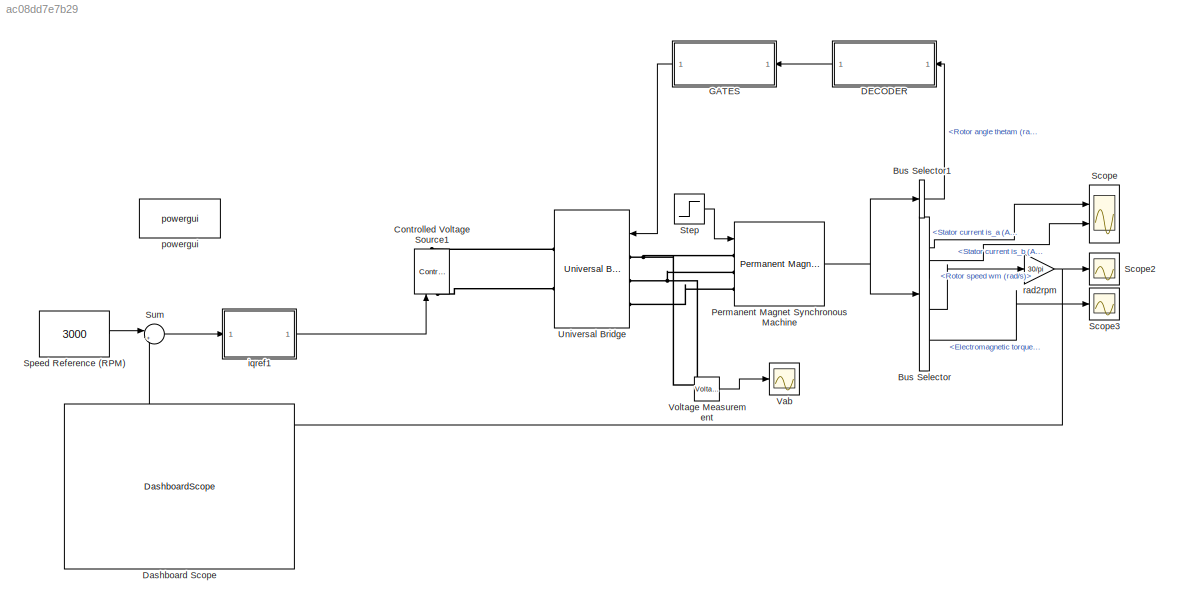
MODEL slx_ac08dd7e7b29
KIND model
CONFIG AbsTol = auto
CONFIG EnableMultiTasking = off
CONFIG FixedStep = auto
CONFIG MaxStep = auto
CONFIG MinStep = auto
CONFIG RelTol = 1e-3
CONFIG SampleTimeConstraint = Unconstrained
CONFIG SolverName = VariableStepAuto
CONFIG StartTime = 0.0
CONFIG StopTime = 10.0
BLOCK [BusSelector] Bus Selector
  OutputSignals = Stator current is_a (A),Stator current is_b (A),Rotor speed wm (rad/s),Electromagnetic torque Te (N*m)
  Ports = [1, 4]
BLOCK [BusSelector] Bus Selector1
  OutputSignals = Rotor angle thetam (rad)
  Ports = [1, 1]
BLOCK [Reference] Controlled Voltage Source1  REF=powerlib/Electrical
Sources/Controlled Voltage Source
  NameLocation = right
  Ports = [1, 0, 0, 0, 0, 1, 1]
  SourceBlock = powerlib/Electrical\nSources/Controlled Voltage Source
  SourceProductBaseCode = PS
  SourceType = Controlled Voltage Source
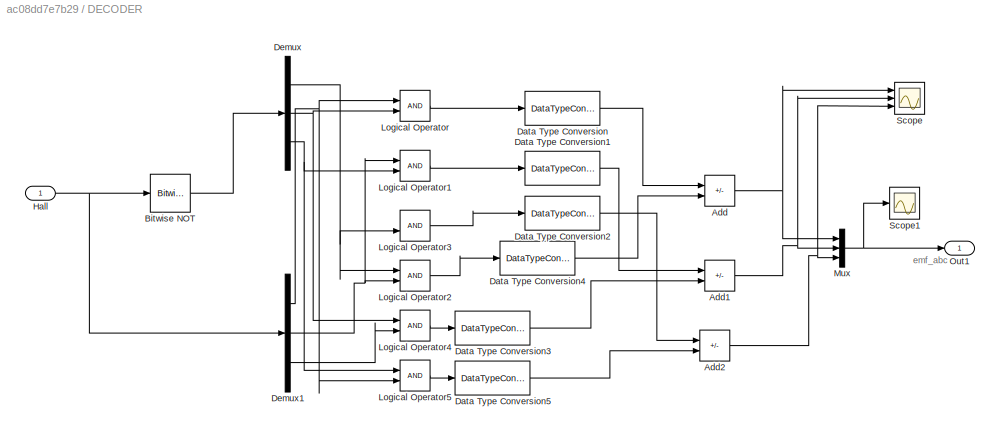
BLOCK [SubSystem] DECODER
  Ports = [1, 1]
  RequestExecContextInheritance = off
BLOCK [Sum] DECODER/Add
  IconShape = rectangular
  Inputs = +-
  Ports = [2, 1]
BLOCK [Sum] DECODER/Add1
  IconShape = rectangular
  Inputs = +-
  Ports = [2, 1]
BLOCK [Sum] DECODER/Add2
  IconShape = rectangular
  Inputs = +-
  Ports = [2, 1]
BLOCK [Reference] DECODER/Bitwise NOT  REF=simulink/Logic and Bit
Operations/Bitwise
Operator
  Ports = [1, 1]
  SourceBlock = simulink/Logic and Bit\nOperations/Bitwise\nOperator
  SourceProductBaseCode = SL
  SourceType = Bitwise Operator
BLOCK [DataTypeConversion] DECODER/Data Type Conversion
  RndMeth = Floor
  SaturateOnIntegerOverflow = off
BLOCK [DataTypeConversion] DECODER/Data Type Conversion1
  RndMeth = Floor
  SaturateOnIntegerOverflow = off
BLOCK [DataTypeConversion] DECODER/Data Type Conversion2
  RndMeth = Floor
  SaturateOnIntegerOverflow = off
BLOCK [DataTypeConversion] DECODER/Data Type Conversion3
  RndMeth = Floor
  SaturateOnIntegerOverflow = off
BLOCK [DataTypeConversion] DECODER/Data Type Conversion4
  RndMeth = Floor
  SaturateOnIntegerOverflow = off
BLOCK [DataTypeConversion] DECODER/Data Type Conversion5
  RndMeth = Floor
  SaturateOnIntegerOverflow = off
BLOCK [Demux] DECODER/Demux
  Outputs = 3
  Ports = [1, 3]
BLOCK [Demux] DECODER/Demux1
  Outputs = 3
  Ports = [1, 3]
BLOCK [Inport] DECODER/Hall
BLOCK [Logic] DECODER/Logical Operator
  AllPortsSameDT = off
  OutDataTypeStr = boolean
  Ports = [2, 1]
BLOCK [Logic] DECODER/Logical Operator1
  AllPortsSameDT = off
  OutDataTypeStr = boolean
  Ports = [2, 1]
BLOCK [Logic] DECODER/Logical Operator2
  AllPortsSameDT = off
  OutDataTypeStr = boolean
  Ports = [2, 1]
BLOCK [Logic] DECODER/Logical Operator3
  AllPortsSameDT = off
  OutDataTypeStr = boolean
  Ports = [2, 1]
BLOCK [Logic] DECODER/Logical Operator4
  AllPortsSameDT = off
  OutDataTypeStr = boolean
  Ports = [2, 1]
BLOCK [Logic] DECODER/Logical Operator5
  AllPortsSameDT = off
  OutDataTypeStr = boolean
  Ports = [2, 1]
BLOCK [Mux] DECODER/Mux
  DisplayOption = bar
  Inputs = 3
  Ports = [3, 1]
BLOCK [Outport] DECODER/Out1
BLOCK [Scope] DECODER/Scope
  Floating = off
  NumInputPorts = 3
  Ports = [3]
  ScopeSpecificationString = Simulink.scopes.TimeScopeBlockCfg('CurrentConfiguration', extmgr.ConfigurationSet(extmgr.Configuration('Core','General UI',true),extmgr.Configuration('Core','Source UI',true),extmgr.Configuration('Sources','WiredSimulink',true,'DataLoggingVariableName','ScopeData5'),extmgr.Configuration('Visuals','Time Domain',true),extmgr.Configuration('Tools','Plot Navigation',true),extmgr.Configuration('Tools',...<+58ch>
BLOCK [Scope] DECODER/Scope1
  Floating = off
  NumInputPorts = 1
  Ports = [1]
  ScopeSpecificationString = Simulink.scopes.TimeScopeBlockCfg('CurrentConfiguration', extmgr.ConfigurationSet(extmgr.Configuration('Core','General UI',true),extmgr.Configuration('Core','Source UI',true),extmgr.Configuration('Sources','WiredSimulink',true,'DataLoggingVariableName','ScopeData6'),extmgr.Configuration('Visuals','Time Domain',true),extmgr.Configuration('Tools','Plot Navigation',true),extmgr.Configuration('Tools',...<+40ch>
BLOCK [DashboardScope] Dashboard Scope
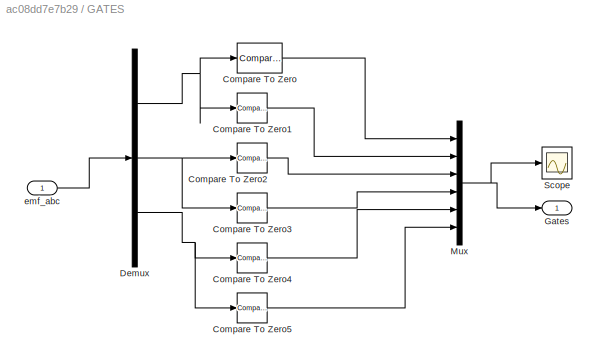
BLOCK [SubSystem] GATES
  Ports = [1, 1]
  RequestExecContextInheritance = off
BLOCK [Reference] GATES/Compare To Zero  REF=simulink/Logic and Bit
Operations/Compare
To Zero
  Ports = [1, 1]
  SourceBlock = simulink/Logic and Bit\nOperations/Compare\nTo Zero
  SourceProductBaseCode = SL
  SourceType = Compare To Zero
BLOCK [Reference] GATES/Compare To Zero1  REF=simulink/Logic and Bit
Operations/Compare
To Zero
  Ports = [1, 1]
  SourceBlock = simulink/Logic and Bit\nOperations/Compare\nTo Zero
  SourceProductBaseCode = SL
  SourceType = Compare To Zero
BLOCK [Reference] GATES/Compare To Zero2  REF=simulink/Logic and Bit
Operations/Compare
To Zero
  Ports = [1, 1]
  SourceBlock = simulink/Logic and Bit\nOperations/Compare\nTo Zero
  SourceProductBaseCode = SL
  SourceType = Compare To Zero
BLOCK [Reference] GATES/Compare To Zero3  REF=simulink/Logic and Bit
Operations/Compare
To Zero
  Ports = [1, 1]
  SourceBlock = simulink/Logic and Bit\nOperations/Compare\nTo Zero
  SourceProductBaseCode = SL
  SourceType = Compare To Zero
BLOCK [Reference] GATES/Compare To Zero4  REF=simulink/Logic and Bit
Operations/Compare
To Zero
  Ports = [1, 1]
  SourceBlock = simulink/Logic and Bit\nOperations/Compare\nTo Zero
  SourceProductBaseCode = SL
  SourceType = Compare To Zero
BLOCK [Reference] GATES/Compare To Zero5  REF=simulink/Logic and Bit
Operations/Compare
To Zero
  Ports = [1, 1]
  SourceBlock = simulink/Logic and Bit\nOperations/Compare\nTo Zero
  SourceProductBaseCode = SL
  SourceType = Compare To Zero
BLOCK [Demux] GATES/Demux
  Outputs = 3
  Ports = [1, 3]
BLOCK [Outport] GATES/Gates
BLOCK [Mux] GATES/Mux
  DisplayOption = bar
  Inputs = 6
  Ports = [6, 1]
BLOCK [Scope] GATES/Scope
  Floating = off
  NumInputPorts = 1
  Ports = [1]
  ScopeSpecificationString = Simulink.scopes.TimeScopeBlockCfg('CurrentConfiguration', extmgr.ConfigurationSet(extmgr.Configuration('Core','General UI',true),extmgr.Configuration('Core','Source UI',true),extmgr.Configuration('Sources','WiredSimulink',true,'DataLoggingVariableName','ScopeData4'),extmgr.Configuration('Visuals','Time Domain',true),extmgr.Configuration('Tools','Plot Navigation',true),extmgr.Configuration('Tools',...<+40ch>
BLOCK [Inport] GATES/emf_abc
BLOCK [Reference] Permanent Magnet Synchronous Machine  REF=powerlib/Machines/Permanent Magnet
Synchronous Machine
  Ports = [1, 1, 0, 0, 0, 3]
  SourceBlock = powerlib/Machines/Permanent Magnet\nSynchronous Machine
  SourceProductBaseCode = PS
  SourceType = Permanent Magnet Synchronous Machine
BLOCK [Scope] Scope
  Floating = off
  NumInputPorts = 2
  Ports = [2]
  ScopeSpecificationString = Simulink.scopes.TimeScopeBlockCfg('CurrentConfiguration', extmgr.ConfigurationSet(extmgr.Configuration('Core','General UI',true),extmgr.Configuration('Core','Source UI',true),extmgr.Configuration('Sources','WiredSimulink',true),extmgr.Configuration('Visuals','Time Domain',true),extmgr.Configuration('Tools','Plot Navigation',true),extmgr.Configuration('Tools','Measurements',true)),'Version','2020b'...<+1ch>
BLOCK [Scope] Scope2
  Floating = off
  NumInputPorts = 1
  Ports = [1]
  ScopeSpecificationString = Simulink.scopes.TimeScopeBlockCfg('CurrentConfiguration', extmgr.ConfigurationSet(extmgr.Configuration('Core','General UI',true),extmgr.Configuration('Core','Source UI',true),extmgr.Configuration('Sources','WiredSimulink',true,'DataLoggingVariableName','ScopeData2'),extmgr.Configuration('Visuals','Time Domain',true),extmgr.Configuration('Tools','Plot Navigation',true),extmgr.Configuration('Tools',...<+40ch>
BLOCK [Scope] Scope3
  Floating = off
  NumInputPorts = 1
  Ports = [1]
  ScopeSpecificationString = Simulink.scopes.TimeScopeBlockCfg('CurrentConfiguration', extmgr.ConfigurationSet(extmgr.Configuration('Core','General UI',true),extmgr.Configuration('Core','Source UI',true),extmgr.Configuration('Sources','WiredSimulink',true,'DataLoggingVariableName','ScopeData3'),extmgr.Configuration('Visuals','Time Domain',true),extmgr.Configuration('Tools','Plot Navigation',true),extmgr.Configuration('Tools',...<+40ch>
BLOCK [Constant] Speed Reference (RPM)
  Value = 3000
BLOCK [Step] Step
  SampleTime = 0
BLOCK [Sum] Sum
  Inputs = |+-
  Ports = [2, 1]
BLOCK [Reference] Universal Bridge  REF=powerlib/Power
Electronics/Universal Bridge
  NameLocation = top
  Ports = [1, 0, 0, 0, 0, 3, 2]
  SourceBlock = powerlib/Power\nElectronics/Universal Bridge
  SourceProductBaseCode = PS
  SourceType = Universal Bridge
BLOCK [Scope] Vab
  Floating = off
  NumInputPorts = 1
  Ports = [1]
  ScopeSpecificationString = Simulink.scopes.TimeScopeBlockCfg('CurrentConfiguration', extmgr.ConfigurationSet(extmgr.Configuration('Core','General UI',true),extmgr.Configuration('Core','Source UI',true),extmgr.Configuration('Sources','WiredSimulink',true,'DataLoggingVariableName','ScopeData1'),extmgr.Configuration('Visuals','Time Domain',true),extmgr.Configuration('Tools','Plot Navigation',true),extmgr.Configuration('Tools',...<+40ch>
BLOCK [Reference] Voltage Measurement  REF=powerlib/Measurements/Voltage Measurement
  Ports = [0, 1, 0, 0, 0, 2]
  SourceBlock = powerlib/Measurements/Voltage Measurement
  SourceProductBaseCode = PS
  SourceType = Voltage Measurement
  UserDataPersistent = on
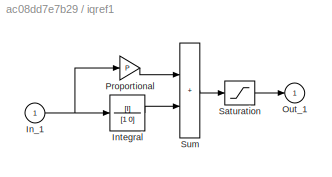
BLOCK [SubSystem] iqref1
  Ports = [1, 1]
  RequestExecContextInheritance = off
BLOCK [Inport] iqref1/In_1
BLOCK [TransferFcn] iqref1/Integral
  Denominator = [1 0]
  Numerator = [I]
BLOCK [Outport] iqref1/Out_1
  InitialOutput = 0
  VectorParamsAs1DForOutWhenUnconnected = off
BLOCK [Gain] iqref1/Proportional
  Gain = P
  NameLocation = top
  OutDataTypeStr = Inherit: Same as input
  ParamDataTypeStr = Inherit: Same as input
  SaturateOnIntegerOverflow = on
BLOCK [Saturate] iqref1/Saturation
  LowerLimit = min
  UpperLimit = max
BLOCK [Sum] iqref1/Sum
  IconShape = rectangular
  InputSameDT = on
  OutDataTypeStr = Inherit: Same as first input
  Ports = [2, 1]
  SaturateOnIntegerOverflow = on
BLOCK [Reference] powergui  REF=powerlib/powergui
  Ports = []
  Priority = 1
  SourceBlock = powerlib/powergui
  SourceProductBaseCode = PS
  SourceType = PSB option menu block
BLOCK [Gain] rad2rpm
  Gain = 30/pi
ANNOTATION DECODER: emf_abc
LINE Bus Selector1:1 -> DECODER:1
LINE Bus Selector:1 -> Scope:1
LINE Bus Selector:2 -> Scope:2
LINE Bus Selector:3 -> rad2rpm:1
LINE Bus Selector:4 -> Scope3:1
NET DECODER/Add1:1 -> DECODER/Mux:2, DECODER/Scope:2
NET DECODER/Add2:1 -> DECODER/Mux:3, DECODER/Scope:3
NET DECODER/Add:1 -> DECODER/Mux:1, DECODER/Scope:1
LINE DECODER/Bitwise NOT:1 -> DECODER/Demux:1
LINE DECODER/Data Type Conversion1:1 -> DECODER/Add1:1
LINE DECODER/Data Type Conversion2:1 -> DECODER/Add2:1
LINE DECODER/Data Type Conversion3:1 -> DECODER/Add1:2
LINE DECODER/Data Type Conversion4:1 -> DECODER/Add:2
LINE DECODER/Data Type Conversion5:1 -> DECODER/Add2:2
LINE DECODER/Data Type Conversion:1 -> DECODER/Add:1
NET DECODER/Demux1:1 -> DECODER/Logical Operator5:2, DECODER/Logical Operator:1
NET DECODER/Demux1:2 -> DECODER/Logical Operator1:1, DECODER/Logical Operator2:2
LINE DECODER/Demux1:3 -> DECODER/Logical Operator4:2
NET DECODER/Demux:1 -> DECODER/Logical Operator2:1, DECODER/Logical Operator3:2
NET DECODER/Demux:2 -> DECODER/Logical Operator4:1, DECODER/Logical Operator:2
NET DECODER/Demux:3 -> DECODER/Logical Operator1:2, DECODER/Logical Operator5:1
NET DECODER/Hall:1 -> DECODER/Bitwise NOT:1, DECODER/Demux1:1
LINE DECODER/Logical Operator1:1 -> DECODER/Data Type Conversion1:1
LINE DECODER/Logical Operator2:1 -> DECODER/Data Type Conversion4:1
LINE DECODER/Logical Operator3:1 -> DECODER/Data Type Conversion2:1
LINE DECODER/Logical Operator4:1 -> DECODER/Data Type Conversion3:1
LINE DECODER/Logical Operator5:1 -> DECODER/Data Type Conversion5:1
LINE DECODER/Logical Operator:1 -> DECODER/Data Type Conversion:1
NET DECODER/Mux:1 -> DECODER/Out1:1, DECODER/Scope1:1
LINE DECODER:1 -> GATES:1
LINE GATES/Compare To Zero1:1 -> GATES/Mux:2
LINE GATES/Compare To Zero2:1 -> GATES/Mux:3
LINE GATES/Compare To Zero3:1 -> GATES/Mux:4
LINE GATES/Compare To Zero4:1 -> GATES/Mux:5
LINE GATES/Compare To Zero5:1 -> GATES/Mux:6
LINE GATES/Compare To Zero:1 -> GATES/Mux:1
NET GATES/Demux:1 -> GATES/Compare To Zero1:1, GATES/Compare To Zero:1
NET GATES/Demux:2 -> GATES/Compare To Zero2:1, GATES/Compare To Zero3:1
NET GATES/Demux:3 -> GATES/Compare To Zero4:1, GATES/Compare To Zero5:1
NET GATES/Mux:1 -> GATES/Gates:1, GATES/Scope:1
LINE GATES/emf_abc:1 -> GATES/Demux:1
LINE GATES:1 -> Universal Bridge:1
NET Permanent Magnet Synchronous Machine:1 -> Bus Selector1:1, Bus Selector:1
LINE Speed Reference (RPM):1 -> Sum:1
LINE Step:1 -> Permanent Magnet Synchronous Machine:1
LINE Sum:1 -> iqref1:1
LINE Voltage Measurement:1 -> Vab:1
NET iqref1/In_1:1 -> iqref1/Integral:1, iqref1/Proportional:1
LINE iqref1/Integral:1 -> iqref1/Sum:2
LINE iqref1/Proportional:1 -> iqref1/Sum:1
LINE iqref1/Saturation:1 -> iqref1/Out_1:1
LINE iqref1/Sum:1 -> iqref1/Saturation:1
LINE iqref1:1 -> Controlled Voltage Source1:1
NET rad2rpm:1 -> Scope2:1, Sum:2
PLINE Controlled Voltage Source1:LConn1 -- Universal Bridge:RConn2
PLINE Controlled Voltage Source1:RConn1 -- Universal Bridge:RConn1
PNET net1: Permanent Magnet Synchronous Machine:LConn1 -- Universal Bridge:LConn1 -- Voltage Measurement:LConn1
PNET net2: Permanent Magnet Synchronous Machine:LConn2 -- Universal Bridge:LConn2 -- Voltage Measurement:LConn2
PLINE Permanent Magnet Synchronous Machine:LConn3 -- Universal Bridge:LConn3
note: NET lines group one-source signal fan-out (src -> all destinations, sorted); 1:1 wires keep LINE; PNET lines group multi-terminal physical nets as a canonical sorted terminal list (undirected conserving connections); 2-terminal nets keep the pairwise PLINE form
